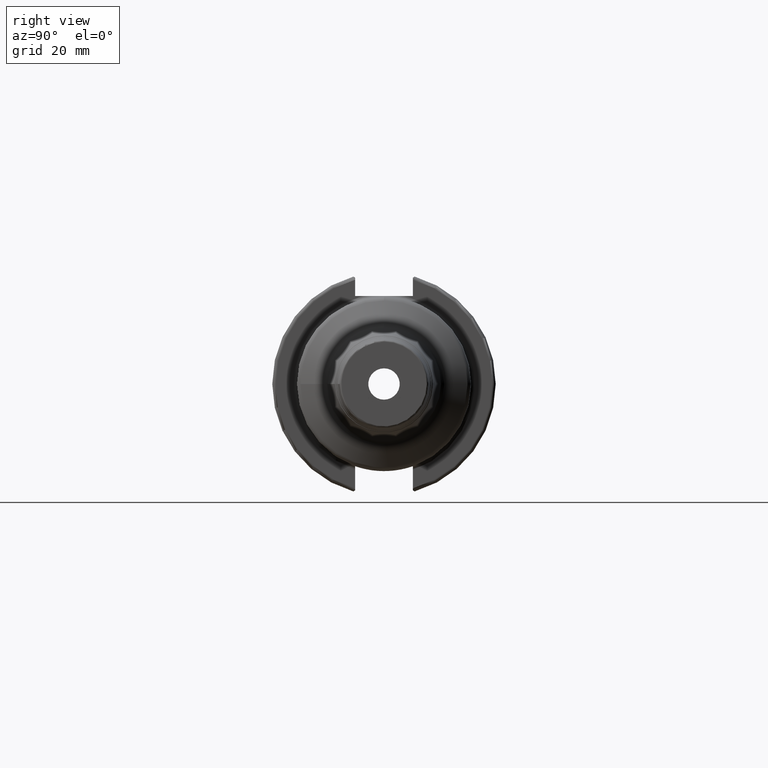
[diagram: clean part render]
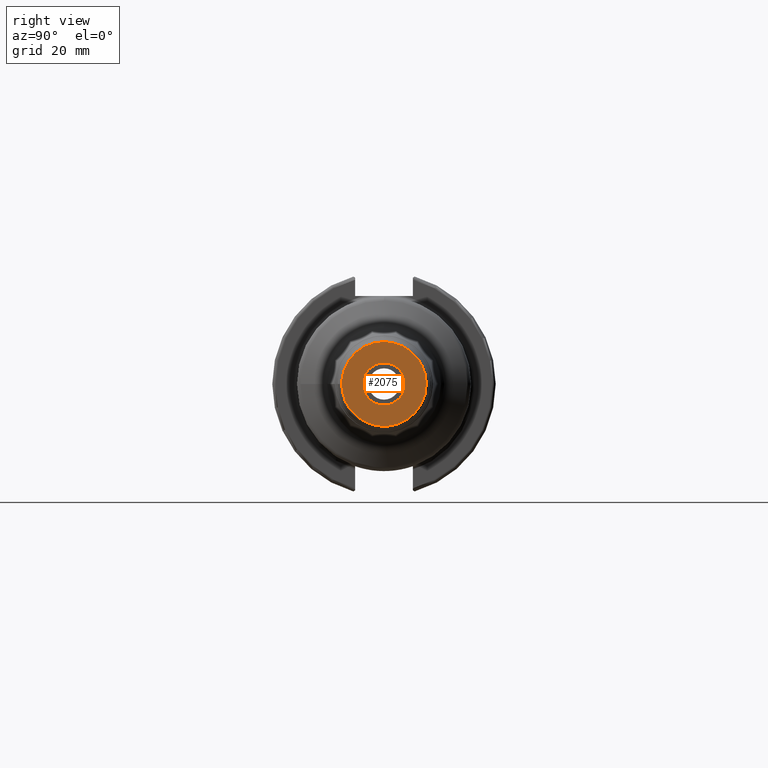
[diagram: same view with one face highlighted and labeled with its STEP entity id]
A machine part, right view. The second image highlights one B-rep face of the part: STEP entity #2075.
In plain terms, the highlighted planar face has unit normal (1, 0, 0).
Its self-contained STEP definition (entity closure, byte-faithful):
#117=FACE_BOUND('',#501,.T.);
#132=PLANE('',#2266);
#394=FACE_OUTER_BOUND('',#500,.T.);
#500=EDGE_LOOP('',(#1502,#1503));
#501=EDGE_LOOP('',(#1504,#1505));
#665=CIRCLE('',#2263,12.0255177166426);
#667=CIRCLE('',#2265,12.0255177166426);
#668=CIRCLE('',#2267,5.99999999999999);
#669=CIRCLE('',#2268,5.99999999999999);
#832=VERTEX_POINT('',#3319);
#833=VERTEX_POINT('',#3320);
#834=VERTEX_POINT('',#3325);
#835=VERTEX_POINT('',#3326);
#1090=EDGE_CURVE('',#832,#833,#665,.T.);
#1092=EDGE_CURVE('',#833,#832,#667,.T.);
#1093=EDGE_CURVE('',#834,#835,#668,.T.);
#1094=EDGE_CURVE('',#835,#834,#669,.T.);
#1502=ORIENTED_EDGE('',*,*,#1090,.F.);
#1503=ORIENTED_EDGE('',*,*,#1092,.F.);
#1504=ORIENTED_EDGE('',*,*,#1093,.F.);
#1505=ORIENTED_EDGE('',*,*,#1094,.F.);
#2075=ADVANCED_FACE('',(#394,#117),#132,.T.);
#2263=AXIS2_PLACEMENT_3D('',#3321,#2653,#2654);
#2265=AXIS2_PLACEMENT_3D('',#3323,#2657,#2658);
#2266=AXIS2_PLACEMENT_3D('',#3324,#2659,#2660);
#2267=AXIS2_PLACEMENT_3D('',#3327,#2661,#2662);
#2268=AXIS2_PLACEMENT_3D('',#3328,#2663,#2664);
#2653=DIRECTION('center_axis',(-1.,0.,0.));
#2654=DIRECTION('ref_axis',(0.,-1.,1.83697019872103E-16));
#2657=DIRECTION('center_axis',(-1.,0.,0.));
#2658=DIRECTION('ref_axis',(0.,-1.,1.83697019872103E-16));
#2659=DIRECTION('center_axis',(1.,0.,0.));
#2660=DIRECTION('ref_axis',(0.,0.,-1.));
#2661=DIRECTION('center_axis',(1.,0.,0.));
#2662=DIRECTION('ref_axis',(0.,0.,-1.));
#2663=DIRECTION('center_axis',(1.,0.,0.));
#2664=DIRECTION('ref_axis',(0.,0.,-1.));
#3319=CARTESIAN_POINT('',(120.,12.0255177166426,-3.68175294494403E-15));
#3320=CARTESIAN_POINT('',(120.,-1.47270117797761E-15,12.0255177166426));
#3321=CARTESIAN_POINT('Origin',(120.,0.,0.));
#3323=CARTESIAN_POINT('Origin',(120.,0.,0.));
#3324=CARTESIAN_POINT('Origin',(120.,5.99999999999999,0.));
#3325=CARTESIAN_POINT('',(120.,5.99999999999999,0.));
#3326=CARTESIAN_POINT('',(120.,-5.99999999999999,-7.3478807948841E-16));
#3327=CARTESIAN_POINT('Origin',(120.,0.,0.));
#3328=CARTESIAN_POINT('Origin',(120.,0.,0.));